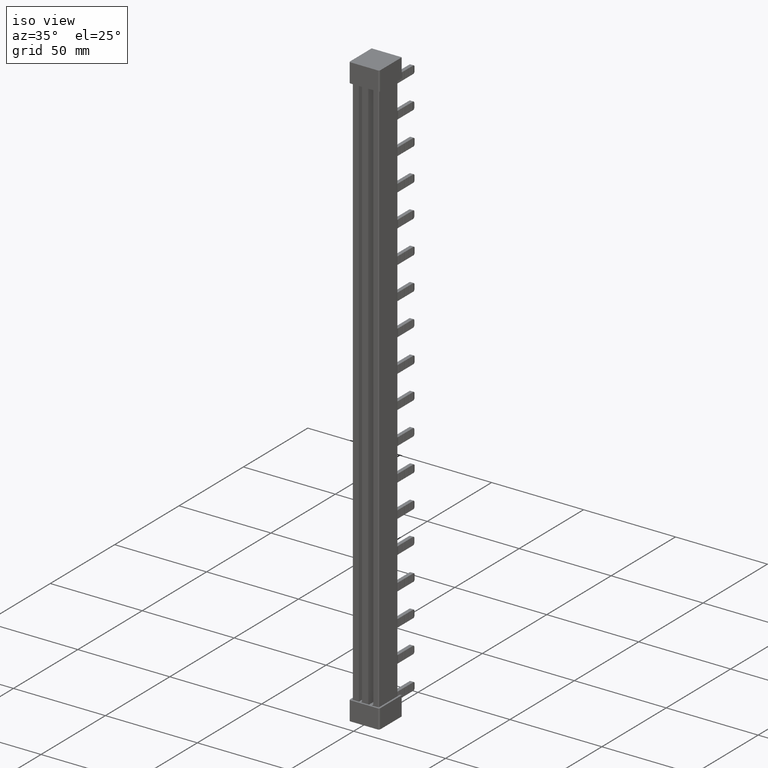
[diagram: clean part render]
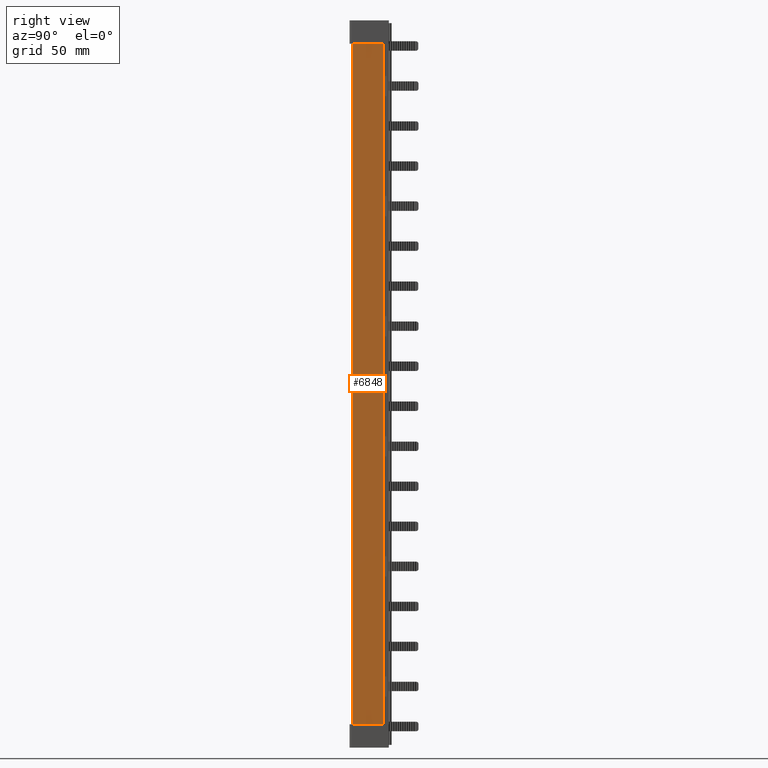
[diagram: tour spotlight — one face highlighted and labeled with its STEP entity id]
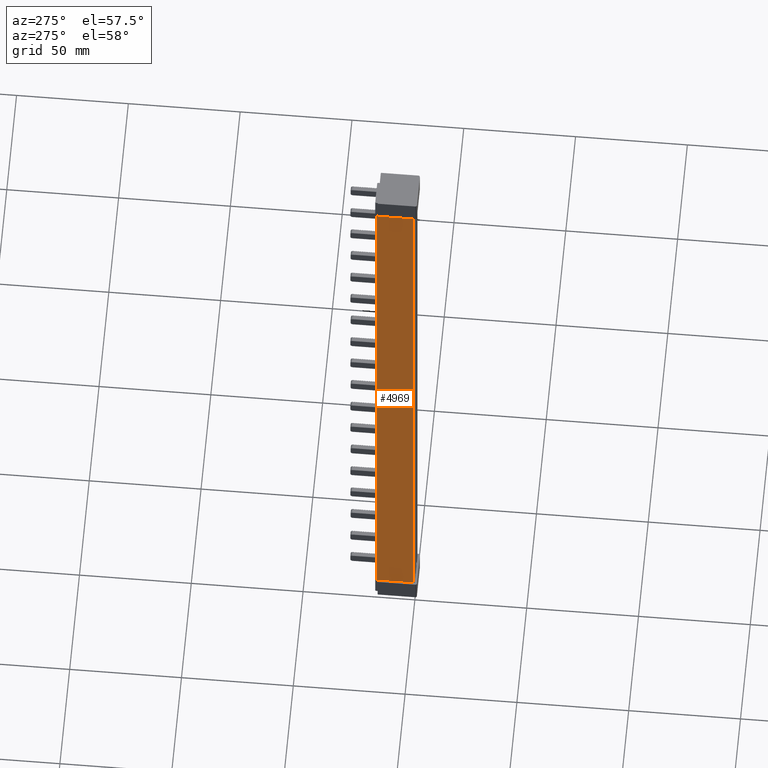
[diagram: tour spotlight — one face highlighted and labeled with its STEP entity id]
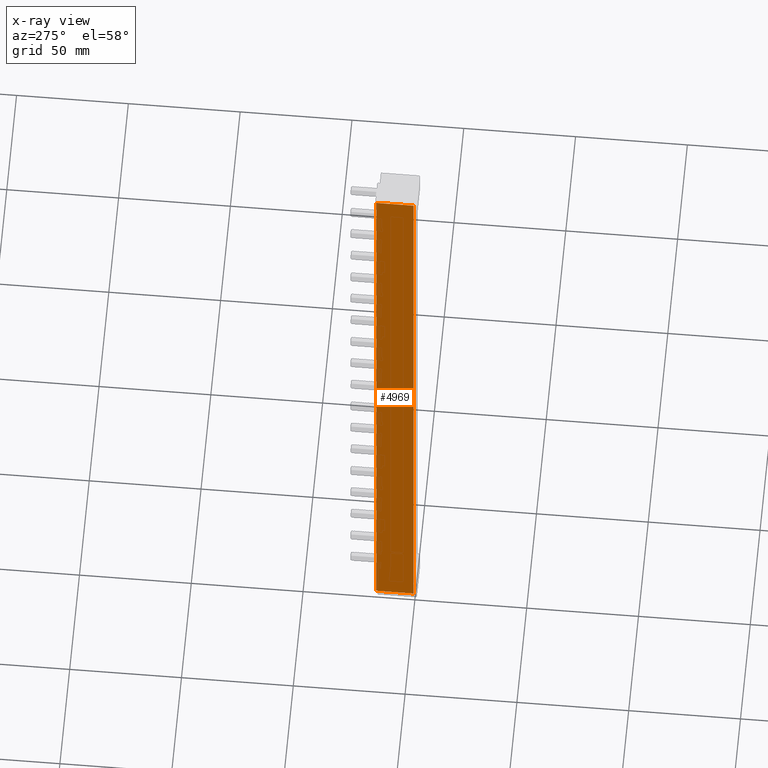
[diagram: x-ray of the same camera — body ghosted, this tour face saturated]
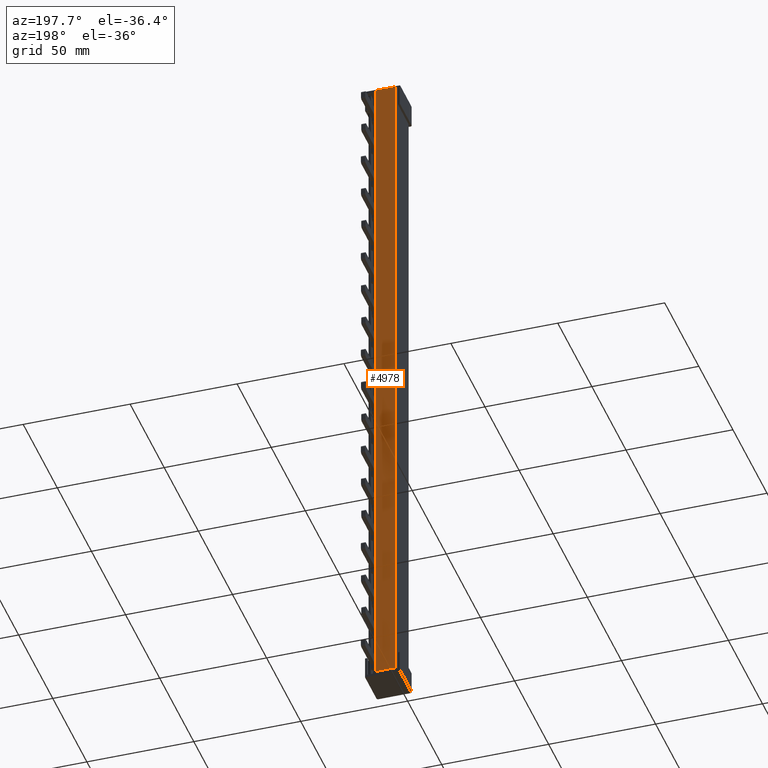
[diagram: tour spotlight — one face highlighted and labeled with its STEP entity id]
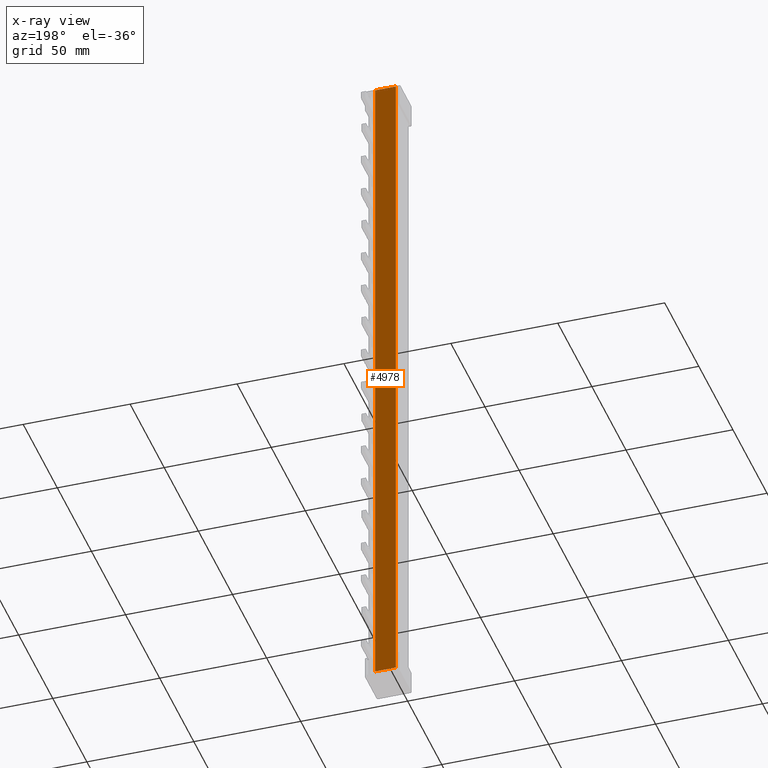
[diagram: x-ray of the same camera — body ghosted, this tour face saturated]
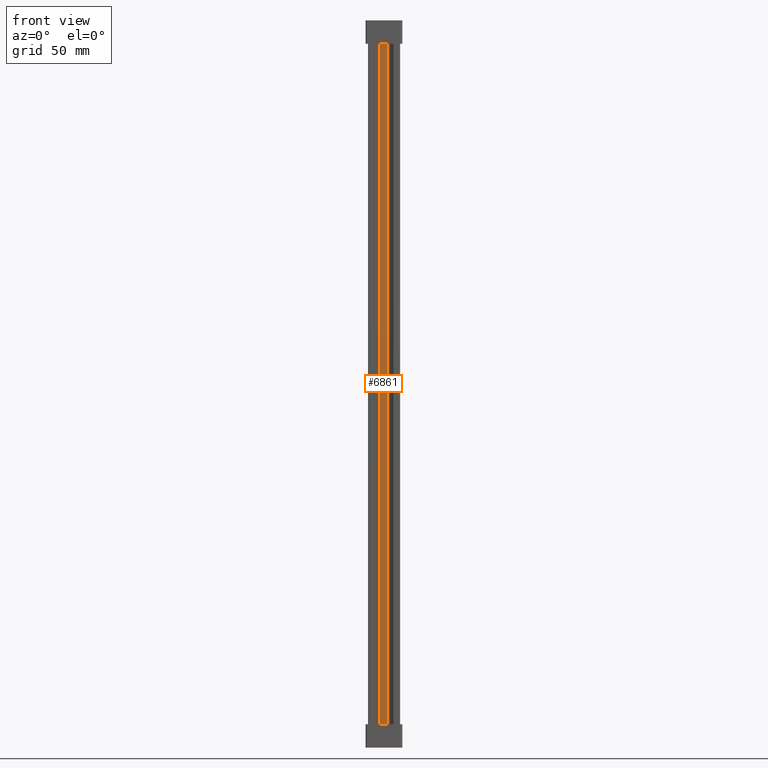
[diagram: tour spotlight — one face highlighted and labeled with its STEP entity id]
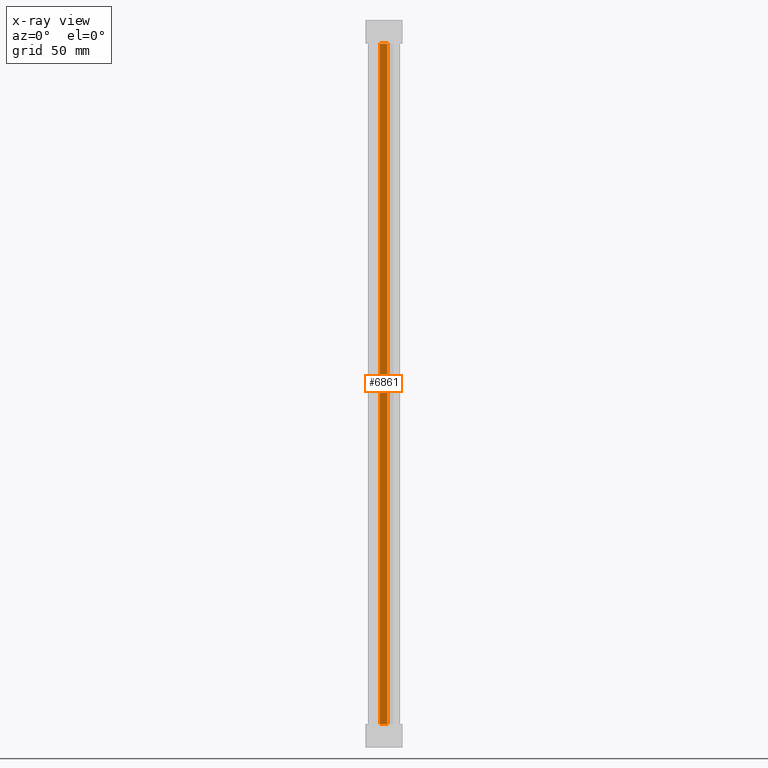
[diagram: x-ray of the same camera — body ghosted, this tour face saturated]
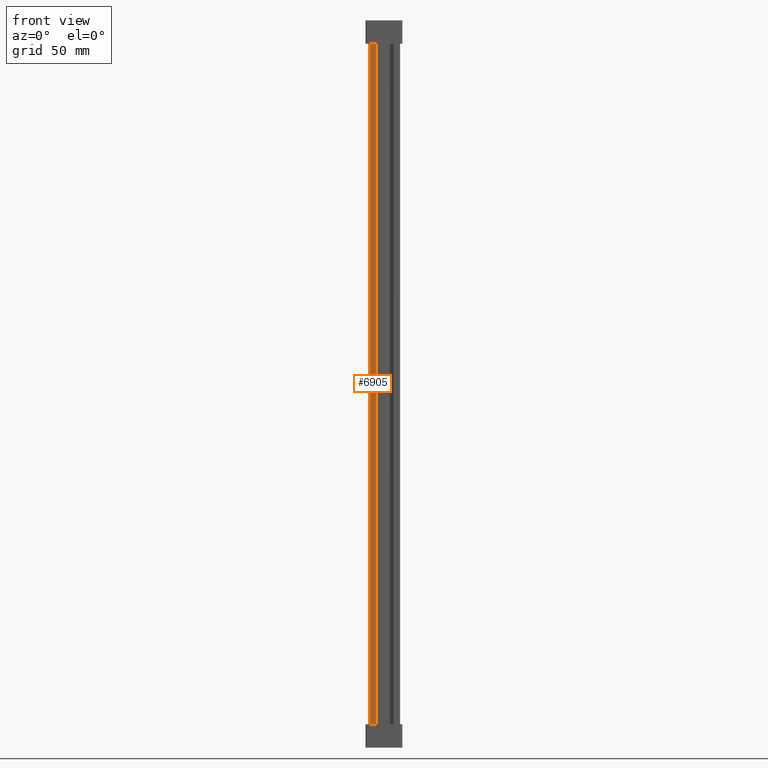
[diagram: tour spotlight — one face highlighted and labeled with its STEP entity id]
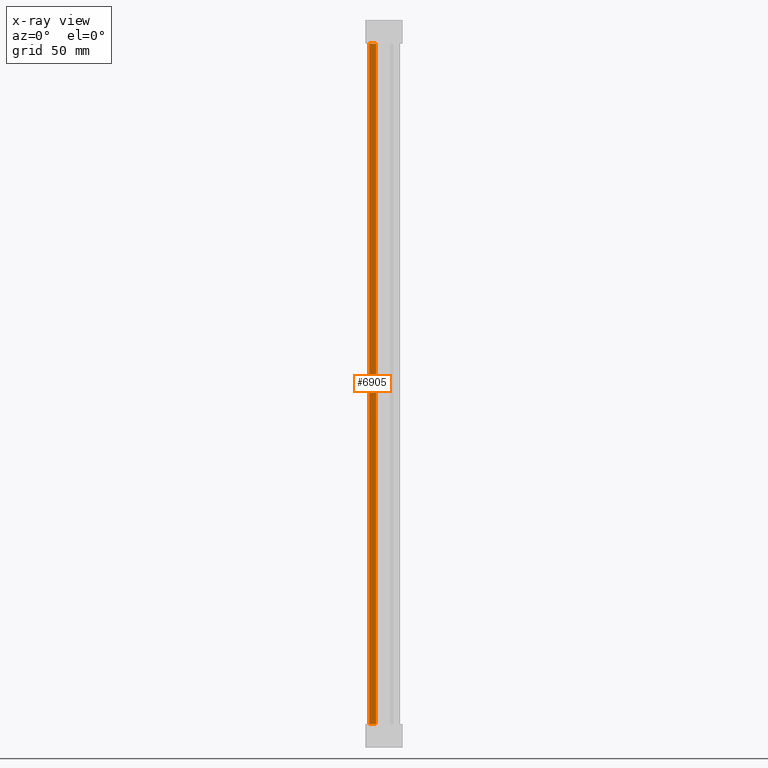
[diagram: x-ray of the same camera — body ghosted, this tour face saturated]
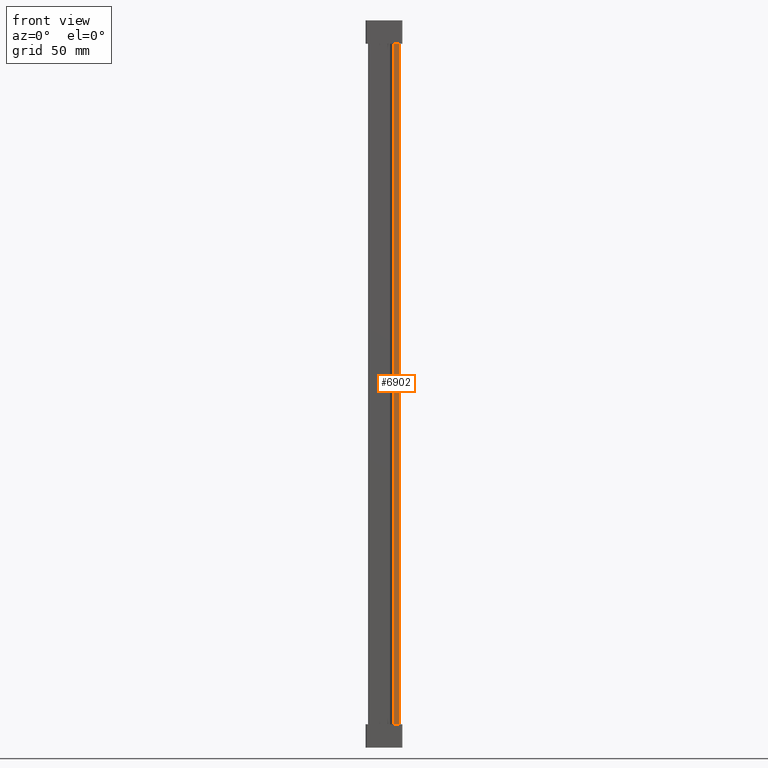
[diagram: tour spotlight — one face highlighted and labeled with its STEP entity id]
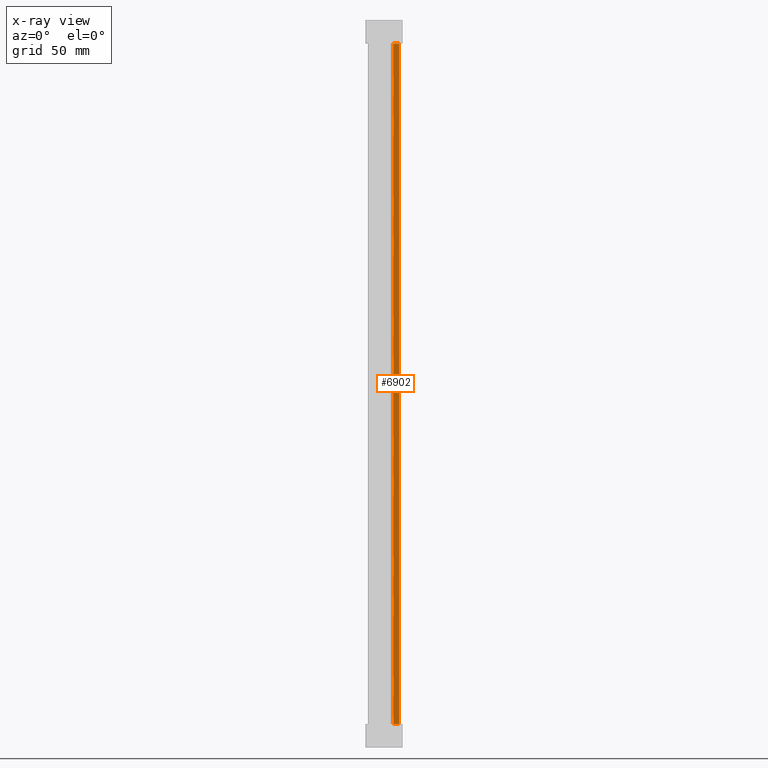
[diagram: x-ray of the same camera — body ghosted, this tour face saturated]
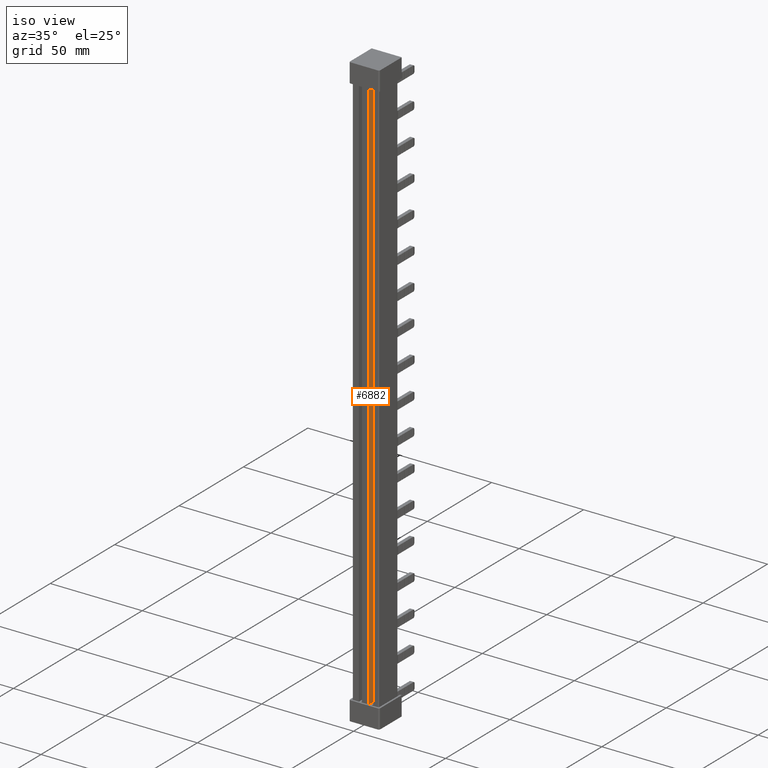
[diagram: tour spotlight — one face highlighted and labeled with its STEP entity id]
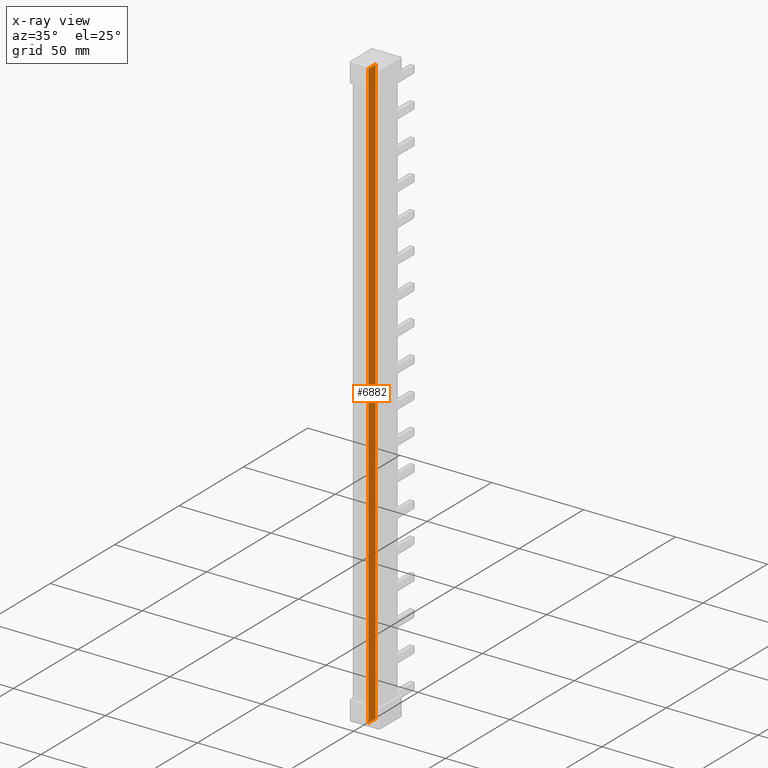
[diagram: x-ray of the same camera — body ghosted, this tour face saturated]
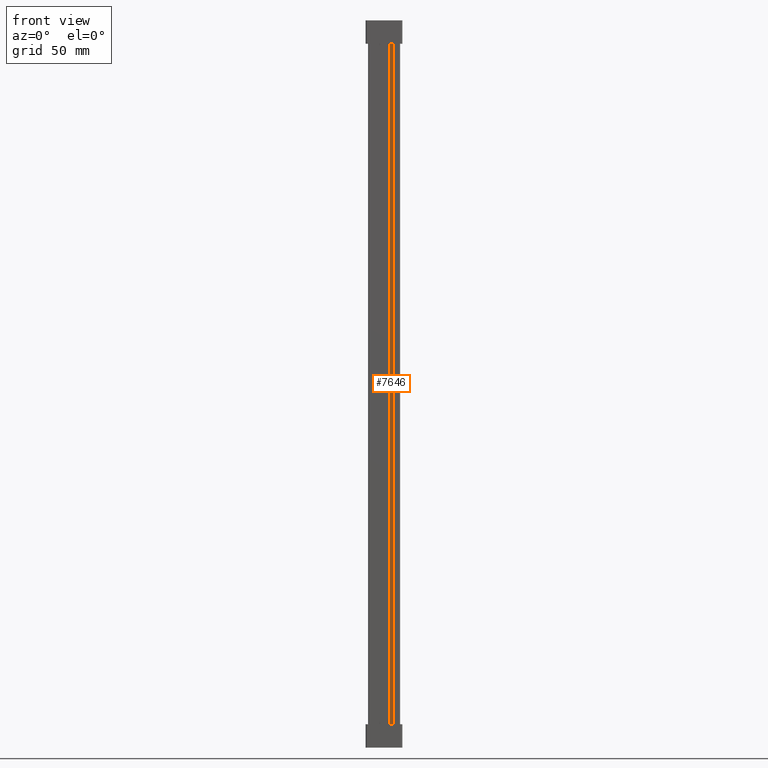
[diagram: tour spotlight — one face highlighted and labeled with its STEP entity id]
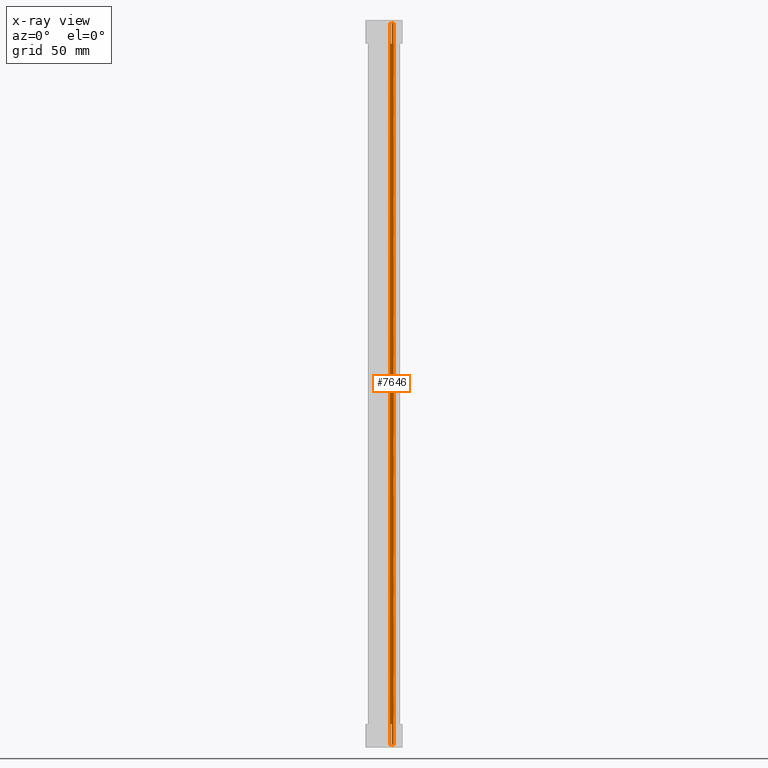
[diagram: x-ray of the same camera — body ghosted, this tour face saturated]
A machine part: a face-by-face anatomy tour. The part has 1010 B-rep faces; the first image is the clean iso view, then the 8 largest visible faces are spotlighted one at a time (largest first), each with its STEP entity span.

Face 1 — right view, entity #6848. In plain terms, the highlighted planar face has unit normal (1, -0, 0).
Definition (entity closure, byte-faithful):
#748 = EDGE_CURVE ( 'NONE', #11662, #11667, #13796, .T. ) ;
#897 = EDGE_CURVE ( 'NONE', #11726, #11685, #14303, .T. ) ;
#911 = EDGE_CURVE ( 'NONE', #11726, #11667, #14288, .T. ) ;
#931 = EDGE_CURVE ( 'NONE', #11662, #11685, #14368, .T. ) ;
#4153 = CARTESIAN_POINT ( 'NONE',  ( 13.67637477970029600, -8.991461328757369000, 219.0000000000000000 ) ) ;
#4155 = DIRECTION ( 'NONE',  ( 1.000000000000000000, -0.0000000000000000000, 0.0000000000000000000 ) ) ;
#4160 = FACE_OUTER_BOUND ( 'NONE', #21672, .T. ) ;
#4178 = PLANE ( 'NONE',  #32021 ) ;
#4242 = DIRECTION ( 'NONE',  ( 0.0000000000000000000, 0.0000000000000000000, -1.000000000000000000 ) ) ;
#6848 = ADVANCED_FACE ( 'NONE', ( #4160 ), #4178, .T. ) ;
#11662 = VERTEX_POINT ( 'NONE', #15833 ) ;
#11667 = VERTEX_POINT ( 'NONE', #15795 ) ;
#11685 = VERTEX_POINT ( 'NONE', #15877 ) ;
#11726 = VERTEX_POINT ( 'NONE', #15978 ) ;
#12015 = ORIENTED_EDGE ( 'NONE', *, *, #748, .T. ) ;
#12021 = ORIENTED_EDGE ( 'NONE', *, *, #931, .F. ) ;
#12028 = ORIENTED_EDGE ( 'NONE', *, *, #911, .F. ) ;
#12044 = ORIENTED_EDGE ( 'NONE', *, *, #897, .T. ) ;
#13796 = LINE ( 'NONE', #13838, #24815 ) ;
#13832 = DIRECTION ( 'NONE',  ( 0.0000000000000000000, 0.0000000000000000000, -1.000000000000000000 ) ) ;
#13838 = CARTESIAN_POINT ( 'NONE',  ( 13.67637477970029600, 0.4999999999992788000, 219.0000000000000000 ) ) ;
#14262 = CARTESIAN_POINT ( 'NONE',  ( 13.67637477970029600, -8.991461328757369000, -94.60000000005183600 ) ) ;
#14264 = DIRECTION ( 'NONE',  ( -0.0000000000000000000, -0.0000000000000000000, 1.000000000000000000 ) ) ;
#14270 = CARTESIAN_POINT ( 'NONE',  ( 13.67637477970029600, 14.29107189157535600, 219.0000000000000000 ) ) ;
#14288 = LINE ( 'NONE', #14262, #24981 ) ;
#14295 = DIRECTION ( 'NONE',  ( 0.0000000000000000000, -1.000000000000000000, 0.0000000000000000000 ) ) ;
#14303 = LINE ( 'NONE', #14270, #24977 ) ;
#14358 = CARTESIAN_POINT ( 'NONE',  ( 13.67637477970029600, -8.991461328757369000, 208.6000000000518100 ) ) ;
#14368 = LINE ( 'NONE', #14358, #24960 ) ;
#14372 = DIRECTION ( 'NONE',  ( 0.0000000000000000000, 1.000000000000000000, 0.0000000000000000000 ) ) ;
#15795 = CARTESIAN_POINT ( 'NONE',  ( 13.67637477970029600, 0.4999999999992788000, -94.60000000005183600 ) ) ;
#15833 = CARTESIAN_POINT ( 'NONE',  ( 13.67637477970029600, 0.4999999999992788000, 208.6000000000518100 ) ) ;
#15877 = CARTESIAN_POINT ( 'NONE',  ( 13.67637477970029600, 14.29107189157535600, 208.6000000000518100 ) ) ;
#15978 = CARTESIAN_POINT ( 'NONE',  ( 13.67637477970029600, 14.29107189157535600, -94.60000000005183600 ) ) ;
#21672 = EDGE_LOOP ( 'NONE', ( #12015, #12028, #12044, #12021 ) ) ;
#24815 = VECTOR ( 'NONE', #13832, 1000.000000000000000 ) ;
#24960 = VECTOR ( 'NONE', #14372, 1000.000000000000000 ) ;
#24977 = VECTOR ( 'NONE', #14264, 1000.000000000000000 ) ;
#24981 = VECTOR ( 'NONE', #14295, 1000.000000000000000 ) ;
#32021 = AXIS2_PLACEMENT_3D ( 'NONE', #4153, #4155, #4242 ) ;

Face 2 — auxiliary view, entity #4969. An x-ray twin of the same camera follows (body ghosted, this face saturated) — the face is partly hidden behind the body. In plain terms, the highlighted planar face has unit normal (-1, 0, 0).
Definition (entity closure, byte-faithful):
#992 = EDGE_CURVE ( 'NONE', #11843, #11801, #1587, .T. ) ;
#1004 = EDGE_CURVE ( 'NONE', #11829, #11843, #1576, .T. ) ;
#1036 = EDGE_CURVE ( 'NONE', #11847, #11850, #1663, .T. ) ;
#1061 = EDGE_CURVE ( 'NONE', #11831, #11829, #1730, .T. ) ;
#1074 = EDGE_CURVE ( 'NONE', #11801, #11847, #1795, .T. ) ;
#1103 = EDGE_CURVE ( 'NONE', #11850, #11831, #1902, .T. ) ;
#1564 = CARTESIAN_POINT ( 'NONE',  ( -0.6240000000000559500, -8.991461328757369000, 217.8000000000587600 ) ) ;
#1568 = DIRECTION ( 'NONE',  ( 0.0000000000000000000, 1.000000000000000000, -0.0000000000000000000 ) ) ;
#1576 = LINE ( 'NONE', #1564, #25089 ) ;
#1582 = CARTESIAN_POINT ( 'NONE',  ( -0.6240000000000411900, 1.249999999999640300, 217.7999999999999800 ) ) ;
#1583 = DIRECTION ( 'NONE',  ( 0.0000000000000000000, 1.000000000000000000, 0.0000000000000000000 ) ) ;
#1587 = LINE ( 'NONE', #1582, #25105 ) ;
#1663 = LINE ( 'NONE', #1669, #24242 ) ;
#1669 = CARTESIAN_POINT ( 'NONE',  ( -0.6240000000000689400, 11.69096289031699400, -103.7999999999999800 ) ) ;
#1699 = DIRECTION ( 'NONE',  ( 0.0000000000000000000, -1.000000000000000000, -3.636195823394557300E-017 ) ) ;
#1730 = LINE ( 'NONE', #1754, #24219 ) ;
#1754 = CARTESIAN_POINT ( 'NONE',  ( -0.6240000000000559500, 0.5000000000000004400, 220.2000000000000200 ) ) ;
#1789 = DIRECTION ( 'NONE',  ( 0.0000000000000000000, 0.0000000000000000000, 1.000000000000000000 ) ) ;
#1795 = LINE ( 'NONE', #1825, #24268 ) ;
#1825 = CARTESIAN_POINT ( 'NONE',  ( -0.6240000000000559500, 17.19999999999998500, 220.2000000000000200 ) ) ;
#1826 = DIRECTION ( 'NONE',  ( -0.0000000000000000000, -0.0000000000000000000, -1.000000000000000000 ) ) ;
#1895 = CARTESIAN_POINT ( 'NONE',  ( -0.6240000000000559500, -8.991461328757369000, -103.8000000000294800 ) ) ;
#1902 = LINE ( 'NONE', #1895, #24307 ) ;
#1931 = DIRECTION ( 'NONE',  ( -0.0000000000000000000, -1.000000000000000000, 0.0000000000000000000 ) ) ;
#2989 = AXIS2_PLACEMENT_3D ( 'NONE', #32755, #32767, #32788 ) ;
#4969 = ADVANCED_FACE ( 'NONE', ( #32764 ), #32749, .T. ) ;
#10586 = ORIENTED_EDGE ( 'NONE', *, *, #1103, .T. ) ;
#10623 = ORIENTED_EDGE ( 'NONE', *, *, #1074, .T. ) ;
#10633 = ORIENTED_EDGE ( 'NONE', *, *, #1004, .T. ) ;
#10638 = ORIENTED_EDGE ( 'NONE', *, *, #1036, .T. ) ;
#10640 = ORIENTED_EDGE ( 'NONE', *, *, #992, .T. ) ;
#10648 = ORIENTED_EDGE ( 'NONE', *, *, #1061, .T. ) ;
#11801 = VERTEX_POINT ( 'NONE', #16068 ) ;
#11829 = VERTEX_POINT ( 'NONE', #16173 ) ;
#11831 = VERTEX_POINT ( 'NONE', #16238 ) ;
#11843 = VERTEX_POINT ( 'NONE', #16218 ) ;
#11847 = VERTEX_POINT ( 'NONE', #16220 ) ;
#11850 = VERTEX_POINT ( 'NONE', #16168 ) ;
#16068 = CARTESIAN_POINT ( 'NONE',  ( -0.6240000000000485200, 17.19999999999998500, 217.7999999999999800 ) ) ;
#16168 = CARTESIAN_POINT ( 'NONE',  ( -0.6240000000000639500, 16.49999999999971600, -103.8000000000221200 ) ) ;
#16173 = CARTESIAN_POINT ( 'NONE',  ( -0.6240000000000559500, 0.5000000000000004400, 217.8000000000587000 ) ) ;
#16218 = CARTESIAN_POINT ( 'NONE',  ( -0.6240000000000448500, 16.49999999999970900, 217.8000000000220400 ) ) ;
#16220 = CARTESIAN_POINT ( 'NONE',  ( -0.6240000000000623900, 17.19999999999998500, -103.8000000000000000 ) ) ;
#16238 = CARTESIAN_POINT ( 'NONE',  ( -0.6240000000000559500, 0.5000000000000004400, -103.8000000000441900 ) ) ;
#24219 = VECTOR ( 'NONE', #1789, 1000.000000000000000 ) ;
#24242 = VECTOR ( 'NONE', #1699, 1000.000000000000000 ) ;
#24268 = VECTOR ( 'NONE', #1826, 1000.000000000000000 ) ;
#24307 = VECTOR ( 'NONE', #1931, 1000.000000000000000 ) ;
#25089 = VECTOR ( 'NONE', #1568, 1000.000000000000000 ) ;
#25105 = VECTOR ( 'NONE', #1583, 1000.000000000000000 ) ;
#28514 = EDGE_LOOP ( 'NONE', ( #10623, #10638, #10586, #10648, #10633, #10640 ) ) ;
#32749 = PLANE ( 'NONE',  #2989 ) ;
#32755 = CARTESIAN_POINT ( 'NONE',  ( -0.6240000000000559500, -8.991461328757369000, 220.2000000000000200 ) ) ;
#32764 = FACE_OUTER_BOUND ( 'NONE', #28514, .T. ) ;
#32767 = DIRECTION ( 'NONE',  ( -1.000000000000000000, 0.0000000000000000000, 0.0000000000000000000 ) ) ;
#32788 = DIRECTION ( 'NONE',  ( 0.0000000000000000000, 0.0000000000000000000, 1.000000000000000000 ) ) ;

Face 3 — auxiliary view, entity #4978. An x-ray twin of the same camera follows (body ghosted, this face saturated) — the face is partly hidden behind the body. In plain terms, the highlighted planar face has unit normal (0, 1, 0).
Definition (entity closure, byte-faithful):
#1062 = EDGE_CURVE ( 'NONE', #11848, #11822, #1766, .T. ) ;
#1072 = EDGE_CURVE ( 'NONE', #11793, #11814, #1772, .T. ) ;
#1100 = EDGE_CURVE ( 'NONE', #11793, #11822, #1862, .T. ) ;
#1167 = EDGE_CURVE ( 'NONE', #11814, #11848, #2110, .T. ) ;
#1766 = LINE ( 'NONE', #1791, #24226 ) ;
#1772 = LINE ( 'NONE', #1780, #24278 ) ;
#1780 = CARTESIAN_POINT ( 'NONE',  ( 5.825548534933072500, 17.69999999999998500, 217.7999999999999800 ) ) ;
#1785 = DIRECTION ( 'NONE',  ( -1.000000000000000000, -0.0000000000000000000, 0.0000000000000000000 ) ) ;
#1791 = CARTESIAN_POINT ( 'NONE',  ( 5.825548534933072500, 17.69999999999998500, -103.8000000000000000 ) ) ;
#1819 = DIRECTION ( 'NONE',  ( 1.000000000000000000, 0.0000000000000000000, -0.0000000000000000000 ) ) ;
#1862 = LINE ( 'NONE', #1863, #24294 ) ;
#1863 = CARTESIAN_POINT ( 'NONE',  ( -0.1239999999999999300, 17.70000000000001400, 220.2000000000000200 ) ) ;
#1868 = DIRECTION ( 'NONE',  ( -0.0000000000000000000, -0.0000000000000000000, -1.000000000000000000 ) ) ;
#2108 = CARTESIAN_POINT ( 'NONE',  ( 9.543233284733545900, 17.69999999999998500, 220.2000000000000200 ) ) ;
#2110 = LINE ( 'NONE', #2108, #24381 ) ;
#2111 = DIRECTION ( 'NONE',  ( -0.0000000000000000000, 0.0000000000000000000, -1.000000000000000000 ) ) ;
#3028 = AXIS2_PLACEMENT_3D ( 'NONE', #32830, #32836, #32837 ) ;
#4978 = ADVANCED_FACE ( 'NONE', ( #32835 ), #32800, .T. ) ;
#10591 = ORIENTED_EDGE ( 'NONE', *, *, #1100, .F. ) ;
#10593 = ORIENTED_EDGE ( 'NONE', *, *, #1072, .T. ) ;
#10609 = ORIENTED_EDGE ( 'NONE', *, *, #1062, .T. ) ;
#10660 = ORIENTED_EDGE ( 'NONE', *, *, #1167, .T. ) ;
#11793 = VERTEX_POINT ( 'NONE', #16097 ) ;
#11814 = VERTEX_POINT ( 'NONE', #16087 ) ;
#11822 = VERTEX_POINT ( 'NONE', #16224 ) ;
#11848 = VERTEX_POINT ( 'NONE', #16203 ) ;
#16087 = CARTESIAN_POINT ( 'NONE',  ( 9.543233284733545900, 17.69999999999998500, 217.7999999999999800 ) ) ;
#16097 = CARTESIAN_POINT ( 'NONE',  ( -0.1239999999999999700, 17.69999999999999900, 217.7999999999999800 ) ) ;
#16203 = CARTESIAN_POINT ( 'NONE',  ( 9.543233284733545900, 17.69999999999998500, -103.8000000000000000 ) ) ;
#16224 = CARTESIAN_POINT ( 'NONE',  ( -0.1239999999999999700, 17.69999999999999900, -103.8000000000000000 ) ) ;
#21631 = EDGE_LOOP ( 'NONE', ( #10660, #10609, #10591, #10593 ) ) ;
#24226 = VECTOR ( 'NONE', #1785, 1000.000000000000000 ) ;
#24278 = VECTOR ( 'NONE', #1819, 1000.000000000000000 ) ;
#24294 = VECTOR ( 'NONE', #1868, 1000.000000000000000 ) ;
#24381 = VECTOR ( 'NONE', #2111, 1000.000000000000000 ) ;
#32800 = PLANE ( 'NONE',  #3028 ) ;
#32830 = CARTESIAN_POINT ( 'NONE',  ( 5.825548534933072500, 17.69999999999998500, 220.2000000000000200 ) ) ;
#32835 = FACE_OUTER_BOUND ( 'NONE', #21631, .T. ) ;
#32836 = DIRECTION ( 'NONE',  ( 0.0000000000000000000, 1.000000000000000000, 0.0000000000000000000 ) ) ;
#32837 = DIRECTION ( 'NONE',  ( 0.0000000000000000000, -0.0000000000000000000, 1.000000000000000000 ) ) ;

Face 4 — front view, entity #6861. An x-ray twin of the same camera follows (body ghosted, this face saturated) — the face is partly hidden behind the body. In plain terms, the highlighted planar face has unit normal (0, 1, 0).
Definition (entity closure, byte-faithful):
#866 = EDGE_CURVE ( 'NONE', #11690, #11711, #14178, .T. ) ;
#910 = EDGE_CURVE ( 'NONE', #11711, #11718, #14279, .T. ) ;
#914 = EDGE_CURVE ( 'NONE', #11719, #11690, #14309, .T. ) ;
#982 = EDGE_CURVE ( 'NONE', #11718, #11719, #1538, .T. ) ;
#1522 = DIRECTION ( 'NONE',  ( 1.000000000000000000, 0.0000000000000000000, -4.965472477636011600E-013 ) ) ;
#1538 = LINE ( 'NONE', #1539, #25086 ) ;
#1539 = CARTESIAN_POINT ( 'NONE',  ( 6.466000000103465900, -2.775557561562891400E-013, 208.6000000000553900 ) ) ;
#4277 = PLANE ( 'NONE',  #32028 ) ;
#4292 = FACE_OUTER_BOUND ( 'NONE', #21643, .T. ) ;
#4298 = DIRECTION ( 'NONE',  ( 0.0000000000000000000, 1.000000000000000000, 0.0000000000000000000 ) ) ;
#4308 = CARTESIAN_POINT ( 'NONE',  ( 6.525548534933072600, -2.775557561562891400E-013, 219.0000000000000000 ) ) ;
#4310 = DIRECTION ( 'NONE',  ( 0.0000000000000000000, -0.0000000000000000000, 1.000000000000000000 ) ) ;
#6861 = ADVANCED_FACE ( 'NONE', ( #4292 ), #4277, .F. ) ;
#11690 = VERTEX_POINT ( 'NONE', #15914 ) ;
#11711 = VERTEX_POINT ( 'NONE', #15974 ) ;
#11718 = VERTEX_POINT ( 'NONE', #15910 ) ;
#11719 = VERTEX_POINT ( 'NONE', #15982 ) ;
#12009 = ORIENTED_EDGE ( 'NONE', *, *, #914, .F. ) ;
#12016 = ORIENTED_EDGE ( 'NONE', *, *, #910, .F. ) ;
#12029 = ORIENTED_EDGE ( 'NONE', *, *, #982, .F. ) ;
#12034 = ORIENTED_EDGE ( 'NONE', *, *, #866, .F. ) ;
#14176 = CARTESIAN_POINT ( 'NONE',  ( 6.466000000103465900, -2.775557561562891400E-013, -94.60000000005538800 ) ) ;
#14178 = LINE ( 'NONE', #14176, #24920 ) ;
#14198 = DIRECTION ( 'NONE',  ( -1.000000000000000000, 0.0000000000000000000, -4.965472477636011600E-013 ) ) ;
#14261 = CARTESIAN_POINT ( 'NONE',  ( 4.549999999999909200, -2.775557561562891400E-013, 219.0000000000000000 ) ) ;
#14279 = LINE ( 'NONE', #14261, #25019 ) ;
#14287 = DIRECTION ( 'NONE',  ( 0.0000000000000000000, -0.0000000000000000000, 1.000000000000000000 ) ) ;
#14309 = LINE ( 'NONE', #14312, #25011 ) ;
#14312 = CARTESIAN_POINT ( 'NONE',  ( 7.950000000000123600, -2.775557561562891400E-013, 219.0000000000000000 ) ) ;
#14324 = DIRECTION ( 'NONE',  ( -0.0000000000000000000, 0.0000000000000000000, -1.000000000000000000 ) ) ;
#15910 = CARTESIAN_POINT ( 'NONE',  ( 4.549999999999910100, -2.775557561562891400E-013, 208.6000000000563300 ) ) ;
#15914 = CARTESIAN_POINT ( 'NONE',  ( 7.950000000000123600, -2.775557561562891400E-013, -94.60000000005464900 ) ) ;
#15974 = CARTESIAN_POINT ( 'NONE',  ( 4.549999999999910100, -2.775557561562891400E-013, -94.60000000005634000 ) ) ;
#15982 = CARTESIAN_POINT ( 'NONE',  ( 7.950000000000123600, -2.775557561562891400E-013, 208.6000000000546200 ) ) ;
#21643 = EDGE_LOOP ( 'NONE', ( #12029, #12016, #12034, #12009 ) ) ;
#24920 = VECTOR ( 'NONE', #14198, 1000.000000000000000 ) ;
#25011 = VECTOR ( 'NONE', #14324, 1000.000000000000000 ) ;
#25019 = VECTOR ( 'NONE', #14287, 1000.000000000000000 ) ;
#25086 = VECTOR ( 'NONE', #1522, 1000.000000000000000 ) ;
#32028 = AXIS2_PLACEMENT_3D ( 'NONE', #4308, #4298, #4310 ) ;

Face 5 — front view, entity #6905. An x-ray twin of the same camera follows (body ghosted, this face saturated) — the face is partly hidden behind the body. In plain terms, the highlighted planar face has unit normal (0, 1, 0).
Definition (entity closure, byte-faithful):
#961 = EDGE_CURVE ( 'NONE', #11757, #11790, #14448, .T. ) ;
#984 = EDGE_CURVE ( 'NONE', #11775, #11744, #1508, .T. ) ;
#1031 = EDGE_CURVE ( 'NONE', #11790, #11775, #1661, .T. ) ;
#1051 = EDGE_CURVE ( 'NONE', #11744, #11757, #1737, .T. ) ;
#1508 = LINE ( 'NONE', #1519, #25102 ) ;
#1519 = CARTESIAN_POINT ( 'NONE',  ( 6.466000000103465900, 0.0000000000000000000, -94.60000000005538800 ) ) ;
#1532 = DIRECTION ( 'NONE',  ( -1.000000000000000000, 0.0000000000000000000, -4.965472477636011600E-013 ) ) ;
#1647 = CARTESIAN_POINT ( 'NONE',  ( 2.900000000000013700, 0.0000000000000000000, 219.0000000000000000 ) ) ;
#1655 = DIRECTION ( 'NONE',  ( -0.0000000000000000000, 0.0000000000000000000, -1.000000000000000000 ) ) ;
#1661 = LINE ( 'NONE', #1647, #24204 ) ;
#1708 = CARTESIAN_POINT ( 'NONE',  ( -0.1239999999999999300, -2.775557561562891400E-014, 219.0000000000000000 ) ) ;
#1712 = DIRECTION ( 'NONE',  ( 0.0000000000000000000, 0.0000000000000000000, 1.000000000000000000 ) ) ;
#1737 = LINE ( 'NONE', #1708, #24217 ) ;
#4471 = CARTESIAN_POINT ( 'NONE',  ( 6.525548534933072600, 0.0000000000000000000, 219.0000000000000000 ) ) ;
#4474 = FACE_OUTER_BOUND ( 'NONE', #21557, .T. ) ;
#4476 = DIRECTION ( 'NONE',  ( 0.0000000000000000000, -0.0000000000000000000, 1.000000000000000000 ) ) ;
#4489 = PLANE ( 'NONE',  #32100 ) ;
#4490 = DIRECTION ( 'NONE',  ( 0.0000000000000000000, 1.000000000000000000, 0.0000000000000000000 ) ) ;
#6905 = ADVANCED_FACE ( 'NONE', ( #4474 ), #4489, .F. ) ;
#11744 = VERTEX_POINT ( 'NONE', #15992 ) ;
#11757 = VERTEX_POINT ( 'NONE', #16105 ) ;
#11775 = VERTEX_POINT ( 'NONE', #16028 ) ;
#11790 = VERTEX_POINT ( 'NONE', #16111 ) ;
#12128 = ORIENTED_EDGE ( 'NONE', *, *, #961, .F. ) ;
#12130 = ORIENTED_EDGE ( 'NONE', *, *, #1051, .F. ) ;
#12153 = ORIENTED_EDGE ( 'NONE', *, *, #1031, .F. ) ;
#12166 = ORIENTED_EDGE ( 'NONE', *, *, #984, .F. ) ;
#14414 = DIRECTION ( 'NONE',  ( 1.000000000000000000, 0.0000000000000000000, -4.965472477636011600E-013 ) ) ;
#14448 = LINE ( 'NONE', #14449, #25054 ) ;
#14449 = CARTESIAN_POINT ( 'NONE',  ( 6.466000000103465900, 0.0000000000000000000, 208.6000000000553900 ) ) ;
#15992 = CARTESIAN_POINT ( 'NONE',  ( -0.1239999999999999600, -1.249000902703301100E-013, -94.60000000005865700 ) ) ;
#16028 = CARTESIAN_POINT ( 'NONE',  ( 2.900000000000013700, 0.0000000000000000000, -94.60000000005716500 ) ) ;
#16105 = CARTESIAN_POINT ( 'NONE',  ( -0.1239999999999999600, -1.249000902703301100E-013, 208.6000000000586600 ) ) ;
#16111 = CARTESIAN_POINT ( 'NONE',  ( 2.900000000000013700, 0.0000000000000000000, 208.6000000000571500 ) ) ;
#21557 = EDGE_LOOP ( 'NONE', ( #12128, #12130, #12166, #12153 ) ) ;
#24204 = VECTOR ( 'NONE', #1655, 1000.000000000000000 ) ;
#24217 = VECTOR ( 'NONE', #1712, 1000.000000000000000 ) ;
#25054 = VECTOR ( 'NONE', #14414, 1000.000000000000000 ) ;
#25102 = VECTOR ( 'NONE', #1532, 1000.000000000000000 ) ;
#32100 = AXIS2_PLACEMENT_3D ( 'NONE', #4471, #4490, #4476 ) ;

Face 6 — front view, entity #6902. An x-ray twin of the same camera follows (body ghosted, this face saturated) — the face is partly hidden behind the body. In plain terms, the highlighted planar face has unit normal (0, 1, 0).
Definition (entity closure, byte-faithful):
#800 = EDGE_CURVE ( 'NONE', #11613, #11661, #13967, .T. ) ;
#944 = EDGE_CURVE ( 'NONE', #22670, #11613, #14393, .T. ) ;
#972 = EDGE_CURVE ( 'NONE', #11661, #22733, #2322, .T. ) ;
#2318 = DIRECTION ( 'NONE',  ( -1.000000000000000000, 0.0000000000000000000, -4.965472477636011600E-013 ) ) ;
#2322 = LINE ( 'NONE', #2324, #25068 ) ;
#2324 = CARTESIAN_POINT ( 'NONE',  ( 6.466000000103465900, -4.996003610813204400E-013, -94.60000000005538800 ) ) ;
#4475 = PLANE ( 'NONE',  #32098 ) ;
#4477 = FACE_OUTER_BOUND ( 'NONE', #21635, .T. ) ;
#4486 = DIRECTION ( 'NONE',  ( 0.0000000000000000000, 1.000000000000000000, 0.0000000000000000000 ) ) ;
#4491 = DIRECTION ( 'NONE',  ( 0.0000000000000000000, -0.0000000000000000000, 1.000000000000000000 ) ) ;
#4513 = CARTESIAN_POINT ( 'NONE',  ( 6.525548534933072600, -4.996003610813204400E-013, 219.0000000000000000 ) ) ;
#6902 = ADVANCED_FACE ( 'NONE', ( #4477 ), #4475, .F. ) ;
#7095 = EDGE_CURVE ( 'NONE', #22733, #22670, #17491, .T. ) ;
#9497 = CARTESIAN_POINT ( 'NONE',  ( 10.67385165201981100, -3.885780586188047900E-013, 208.6000000000532900 ) ) ;
#9554 = CARTESIAN_POINT ( 'NONE',  ( 10.67385165201981100, -3.885780586188047900E-013, -94.60000000005328500 ) ) ;
#11613 = VERTEX_POINT ( 'NONE', #15667 ) ;
#11661 = VERTEX_POINT ( 'NONE', #15848 ) ;
#12049 = ORIENTED_EDGE ( 'NONE', *, *, #944, .F. ) ;
#12052 = ORIENTED_EDGE ( 'NONE', *, *, #972, .F. ) ;
#12062 = ORIENTED_EDGE ( 'NONE', *, *, #800, .F. ) ;
#12063 = ORIENTED_EDGE ( 'NONE', *, *, #7095, .F. ) ;
#13931 = CARTESIAN_POINT ( 'NONE',  ( 13.17637477970035000, -4.996003610813204400E-013, 219.0000000000000000 ) ) ;
#13934 = DIRECTION ( 'NONE',  ( -0.0000000000000000000, 0.0000000000000000000, -1.000000000000000000 ) ) ;
#13967 = LINE ( 'NONE', #13931, #24878 ) ;
#14374 = DIRECTION ( 'NONE',  ( 1.000000000000000000, 0.0000000000000000000, -4.965472477636011600E-013 ) ) ;
#14390 = CARTESIAN_POINT ( 'NONE',  ( 6.466000000103465900, -4.996003610813204400E-013, 208.6000000000553900 ) ) ;
#14393 = LINE ( 'NONE', #14390, #25057 ) ;
#15667 = CARTESIAN_POINT ( 'NONE',  ( 13.17637477970035000, -4.996003610813204400E-013, 208.6000000000520600 ) ) ;
#15848 = CARTESIAN_POINT ( 'NONE',  ( 13.17637477970035000, -4.996003610813204400E-013, -94.60000000005206300 ) ) ;
#17407 = DIRECTION ( 'NONE',  ( 0.0000000000000000000, -0.0000000000000000000, 1.000000000000000000 ) ) ;
#17448 = CARTESIAN_POINT ( 'NONE',  ( 10.67385165201982700, -4.996003610813204400E-013, 219.0000000000000000 ) ) ;
#17491 = LINE ( 'NONE', #17448, #32229 ) ;
#21635 = EDGE_LOOP ( 'NONE', ( #12049, #12063, #12052, #12062 ) ) ;
#22670 = VERTEX_POINT ( 'NONE', #9497 ) ;
#22733 = VERTEX_POINT ( 'NONE', #9554 ) ;
#24878 = VECTOR ( 'NONE', #13934, 1000.000000000000000 ) ;
#25057 = VECTOR ( 'NONE', #14374, 1000.000000000000000 ) ;
#25068 = VECTOR ( 'NONE', #2318, 1000.000000000000000 ) ;
#32098 = AXIS2_PLACEMENT_3D ( 'NONE', #4513, #4486, #4491 ) ;
#32229 = VECTOR ( 'NONE', #17407, 1000.000000000000000 ) ;

Face 7 — iso view, entity #6882. An x-ray twin of the same camera follows (body ghosted, this face saturated) — the face is partly hidden behind the body. In plain terms, the highlighted planar face has unit normal (-1, 0, 0).
Definition (entity closure, byte-faithful):
#914 = EDGE_CURVE ( 'NONE', #11719, #11690, #14309, .T. ) ;
#921 = EDGE_CURVE ( 'NONE', #11719, #11781, #14320, .T. ) ;
#1006 = EDGE_CURVE ( 'NONE', #11821, #11781, #1607, .T. ) ;
#1084 = EDGE_CURVE ( 'NONE', #11849, #11821, #1816, .T. ) ;
#1087 = EDGE_CURVE ( 'NONE', #11849, #11834, #1828, .T. ) ;
#1102 = EDGE_CURVE ( 'NONE', #11834, #11690, #1871, .T. ) ;
#1598 = CARTESIAN_POINT ( 'NONE',  ( 7.950000000000123600, 16.29999999999973100, 217.8000000000546100 ) ) ;
#1607 = LINE ( 'NONE', #1598, #25133 ) ;
#1640 = DIRECTION ( 'NONE',  ( -0.0000000000000000000, -1.000000000000000000, -0.0000000000000000000 ) ) ;
#1798 = CARTESIAN_POINT ( 'NONE',  ( 7.950000000000123600, -8.991461328757369000, -103.8000000000546200 ) ) ;
#1805 = DIRECTION ( 'NONE',  ( 0.0000000000000000000, -0.0000000000000000000, 1.000000000000000000 ) ) ;
#1816 = LINE ( 'NONE', #1835, #24308 ) ;
#1828 = LINE ( 'NONE', #1798, #24271 ) ;
#1835 = CARTESIAN_POINT ( 'NONE',  ( 7.950000000000123600, 5.673275106952147000, 220.2000000000000200 ) ) ;
#1836 = DIRECTION ( 'NONE',  ( -0.0000000000000000000, -1.000000000000000000, 0.0000000000000000000 ) ) ;
#1871 = LINE ( 'NONE', #1874, #24270 ) ;
#1874 = CARTESIAN_POINT ( 'NONE',  ( 7.950000000000123600, -2.775557561562891400E-013, 220.2000000000000200 ) ) ;
#1916 = DIRECTION ( 'NONE',  ( 0.0000000000000000000, 0.0000000000000000000, 1.000000000000000000 ) ) ;
#4364 = DIRECTION ( 'NONE',  ( -1.000000000000000000, 0.0000000000000000000, 0.0000000000000000000 ) ) ;
#4378 = PLANE ( 'NONE',  #32057 ) ;
#4397 = FACE_OUTER_BOUND ( 'NONE', #28519, .T. ) ;
#4405 = CARTESIAN_POINT ( 'NONE',  ( 7.950000000000123600, -8.991461328757369000, 220.2000000000000200 ) ) ;
#4407 = DIRECTION ( 'NONE',  ( 0.0000000000000000000, 0.0000000000000000000, 1.000000000000000000 ) ) ;
#6882 = ADVANCED_FACE ( 'NONE', ( #4397 ), #4378, .F. ) ;
#10795 = ORIENTED_EDGE ( 'NONE', *, *, #921, .F. ) ;
#10891 = ORIENTED_EDGE ( 'NONE', *, *, #914, .T. ) ;
#10911 = ORIENTED_EDGE ( 'NONE', *, *, #1084, .T. ) ;
#10932 = ORIENTED_EDGE ( 'NONE', *, *, #1102, .F. ) ;
#10985 = ORIENTED_EDGE ( 'NONE', *, *, #1006, .T. ) ;
#10992 = ORIENTED_EDGE ( 'NONE', *, *, #1087, .F. ) ;
#11690 = VERTEX_POINT ( 'NONE', #15914 ) ;
#11719 = VERTEX_POINT ( 'NONE', #15982 ) ;
#11781 = VERTEX_POINT ( 'NONE', #16099 ) ;
#11821 = VERTEX_POINT ( 'NONE', #16166 ) ;
#11834 = VERTEX_POINT ( 'NONE', #16171 ) ;
#11849 = VERTEX_POINT ( 'NONE', #16242 ) ;
#14309 = LINE ( 'NONE', #14312, #25011 ) ;
#14312 = CARTESIAN_POINT ( 'NONE',  ( 7.950000000000123600, -2.775557561562891400E-013, 219.0000000000000000 ) ) ;
#14320 = LINE ( 'NONE', #14339, #25016 ) ;
#14324 = DIRECTION ( 'NONE',  ( -0.0000000000000000000, 0.0000000000000000000, -1.000000000000000000 ) ) ;
#14339 = CARTESIAN_POINT ( 'NONE',  ( 7.950000000000123600, -2.775557561562891400E-013, 209.8000000000553800 ) ) ;
#14369 = DIRECTION ( 'NONE',  ( 0.0000000000000000000, -0.0000000000000000000, 1.000000000000000000 ) ) ;
#15914 = CARTESIAN_POINT ( 'NONE',  ( 7.950000000000123600, -2.775557561562891400E-013, -94.60000000005464900 ) ) ;
#15982 = CARTESIAN_POINT ( 'NONE',  ( 7.950000000000123600, -2.775557561562891400E-013, 208.6000000000546200 ) ) ;
#16099 = CARTESIAN_POINT ( 'NONE',  ( 7.950000000000123600, -2.775557561562891400E-013, 217.8000000000546100 ) ) ;
#16166 = CARTESIAN_POINT ( 'NONE',  ( 7.950000000000123600, 5.673275106952147000, 217.8000000000546400 ) ) ;
#16171 = CARTESIAN_POINT ( 'NONE',  ( 7.950000000000123600, -2.775557561562891400E-013, -103.8000000000544400 ) ) ;
#16242 = CARTESIAN_POINT ( 'NONE',  ( 7.950000000000123600, 5.673275106952147000, -103.8000000000544500 ) ) ;
#24270 = VECTOR ( 'NONE', #1916, 1000.000000000000000 ) ;
#24271 = VECTOR ( 'NONE', #1836, 1000.000000000000000 ) ;
#24308 = VECTOR ( 'NONE', #1805, 1000.000000000000000 ) ;
#25011 = VECTOR ( 'NONE', #14324, 1000.000000000000000 ) ;
#25016 = VECTOR ( 'NONE', #14369, 1000.000000000000000 ) ;
#25133 = VECTOR ( 'NONE', #1640, 1000.000000000000000 ) ;
#28519 = EDGE_LOOP ( 'NONE', ( #10891, #10932, #10992, #10911, #10985, #10795 ) ) ;
#32057 = AXIS2_PLACEMENT_3D ( 'NONE', #4405, #4364, #4407 ) ;

Face 8 — front view, entity #7646. An x-ray twin of the same camera follows (body ghosted, this face saturated) — the face is partly hidden behind the body. In plain terms, the highlighted planar face has unit normal (0.9659, 0.2588, -0).
Definition (entity closure, byte-faithful):
#3840 = CARTESIAN_POINT ( 'NONE',  ( 13.15353764104494000, -9.254314097858843600, 208.6000000000520600 ) ) ;
#3842 = DIRECTION ( 'NONE',  ( -0.2588190451025209600, 0.9659258262890682000, -1.285158845144601500E-013 ) ) ;
#3849 = DIRECTION ( 'NONE',  ( 0.2588190451025209600, -0.9659258262890682000, -1.285158845144601500E-013 ) ) ;
#3852 = LINE ( 'NONE', #3840, #32234 ) ;
#3857 = LINE ( 'NONE', #3877, #32207 ) ;
#3877 = CARTESIAN_POINT ( 'NONE',  ( 13.15353764104494000, -9.254314097858843600, -94.60000000005207700 ) ) ;
#3903 = LINE ( 'NONE', #4028, #32201 ) ;
#4028 = CARTESIAN_POINT ( 'NONE',  ( 9.378841460817112000, 4.833043829887566600, 217.8000000000539000 ) ) ;
#4097 = DIRECTION ( 'NONE',  ( -0.2588190451025242400, 0.9659258262890673100, 1.276307037953525200E-013 ) ) ;
#4283 = LINE ( 'NONE', #4388, #32181 ) ;
#4388 = CARTESIAN_POINT ( 'NONE',  ( 10.67385165201979900, -3.452099717193846100E-013, 220.2000000000000200 ) ) ;
#4456 = DIRECTION ( 'NONE',  ( -0.0000000000000000000, -0.0000000000000000000, -1.000000000000000000 ) ) ;
#4830 = LINE ( 'NONE', #4852, #32218 ) ;
#4834 = DIRECTION ( 'NONE',  ( 0.0000000000000000000, 0.0000000000000000000, 1.000000000000000000 ) ) ;
#4839 = DIRECTION ( 'NONE',  ( -0.0000000000000000000, -0.0000000000000000000, -1.000000000000000000 ) ) ;
#4846 = LINE ( 'NONE', #4870, #32206 ) ;
#4852 = CARTESIAN_POINT ( 'NONE',  ( 9.153702168672285900, 5.673275106952145200, 220.2000000000000200 ) ) ;
#4870 = CARTESIAN_POINT ( 'NONE',  ( 10.67385165201978100, -2.810252031082427500E-013, 219.0000000000000000 ) ) ;
#4875 = DIRECTION ( 'NONE',  ( -4.965472477636011600E-013, -0.0000000000000000000, -1.000000000000000000 ) ) ;
#4876 = CARTESIAN_POINT ( 'NONE',  ( 9.378841460817112000, 4.833043829887564000, 219.0000000000000000 ) ) ;
#4884 = CARTESIAN_POINT ( 'NONE',  ( 9.970264213190777300, 2.625824069271080600, 209.8000000000536400 ) ) ;
#4895 = CARTESIAN_POINT ( 'NONE',  ( 12.64383336666333200, -7.352071849031657000, -103.8000000000532900 ) ) ;
#4904 = LINE ( 'NONE', #4876, #32191 ) ;
#4908 = LINE ( 'NONE', #4884, #32203 ) ;
#4909 = DIRECTION ( 'NONE',  ( -0.2588190451025209600, 0.9659258262890682000, 0.0000000000000000000 ) ) ;
#4911 = DIRECTION ( 'NONE',  ( -0.0000000000000000000, -0.0000000000000000000, -1.000000000000000000 ) ) ;
#4912 = LINE ( 'NONE', #4916, #32217 ) ;
#4915 = LINE ( 'NONE', #4895, #32236 ) ;
#4916 = CARTESIAN_POINT ( 'NONE',  ( 9.378841460817392700, 4.833043829886512400, 220.2000000000000200 ) ) ;
#4924 = DIRECTION ( 'NONE',  ( -0.0000000000000000000, -0.0000000000000000000, -1.000000000000000000 ) ) ;
#7038 = EDGE_CURVE ( 'NONE', #22738, #22710, #4830, .T. ) ;
#7042 = EDGE_CURVE ( 'NONE', #22574, #22670, #4846, .T. ) ;
#7052 = EDGE_CURVE ( 'NONE', #22761, #22768, #4908, .T. ) ;
#7055 = EDGE_CURVE ( 'NONE', #22752, #22700, #4915, .T. ) ;
#7060 = EDGE_CURVE ( 'NONE', #22765, #22680, #4904, .T. ) ;
#7062 = EDGE_CURVE ( 'NONE', #22696, #22688, #4912, .T. ) ;
#7071 = EDGE_CURVE ( 'NONE', #22680, #22768, #3852, .T. ) ;
#7073 = EDGE_CURVE ( 'NONE', #22621, #22696, #3857, .T. ) ;
#7083 = EDGE_CURVE ( 'NONE', #22765, #22710, #3903, .T. ) ;
#7085 = EDGE_CURVE ( 'NONE', #22733, #22752, #4283, .T. ) ;
#7092 = EDGE_CURVE ( 'NONE', #22700, #22621, #17434, .T. ) ;
#7093 = EDGE_CURVE ( 'NONE', #22761, #22574, #17482, .T. ) ;
#7095 = EDGE_CURVE ( 'NONE', #22733, #22670, #17491, .T. ) ;
#7102 = EDGE_CURVE ( 'NONE', #22738, #22688, #17460, .T. ) ;
#7646 = ADVANCED_FACE ( 'NONE', ( #9889 ), #9890, .F. ) ;
#9434 = CARTESIAN_POINT ( 'NONE',  ( 10.67385165201978100, -2.798687207909248900E-013, 217.8000000000534700 ) ) ;
#9460 = CARTESIAN_POINT ( 'NONE',  ( 9.153702168672284100, 5.673275106952147000, 217.8000000000540100 ) ) ;
#9463 = CARTESIAN_POINT ( 'NONE',  ( 9.378841460817252300, 4.833043829887038200, -103.8000000000538800 ) ) ;
#9468 = CARTESIAN_POINT ( 'NONE',  ( 9.970264213195362000, 2.625824069259713200, -94.60000000005364000 ) ) ;
#9478 = CARTESIAN_POINT ( 'NONE',  ( 9.378841460817112000, 4.833043829887564000, 208.6000000000539400 ) ) ;
#9485 = CARTESIAN_POINT ( 'NONE',  ( 9.378841460817392700, 4.833043829886512400, -94.60000000005392500 ) ) ;
#9488 = CARTESIAN_POINT ( 'NONE',  ( 9.970264213195356700, 2.625824069259713200, -103.8000000000533300 ) ) ;
#9497 = CARTESIAN_POINT ( 'NONE',  ( 10.67385165201981100, -3.885780586188047900E-013, 208.6000000000532900 ) ) ;
#9523 = CARTESIAN_POINT ( 'NONE',  ( 10.67385165201979900, -3.275736163802870900E-013, -103.8000000000532700 ) ) ;
#9554 = CARTESIAN_POINT ( 'NONE',  ( 10.67385165201981100, -3.885780586188047900E-013, -94.60000000005328500 ) ) ;
#9557 = CARTESIAN_POINT ( 'NONE',  ( 9.378841460817112000, 4.833043829887563100, 217.8000000000539000 ) ) ;
#9564 = CARTESIAN_POINT ( 'NONE',  ( 9.153702168672285900, 5.673275106952146100, -103.8000000000540100 ) ) ;
#9567 = CARTESIAN_POINT ( 'NONE',  ( 9.970264213194401000, 2.625824069270827900, 217.8000000000536100 ) ) ;
#9575 = CARTESIAN_POINT ( 'NONE',  ( 9.970264213190182200, 2.625824069271080600, 208.6000000000536300 ) ) ;
#9889 = FACE_OUTER_BOUND ( 'NONE', #27196, .T. ) ;
#9890 = PLANE ( 'NONE',  #23959 ) ;
#9910 = CARTESIAN_POINT ( 'NONE',  ( 12.64383336666333200, -7.352071849031657000, 220.2000000000000200 ) ) ;
#9912 = DIRECTION ( 'NONE',  ( -0.2588190451025209600, 0.9659258262890682000, 0.0000000000000000000 ) ) ;
#9917 = DIRECTION ( 'NONE',  ( 0.9659258262890682000, 0.2588190451025209600, -0.0000000000000000000 ) ) ;
#17204 = ORIENTED_EDGE ( 'NONE', *, *, #7085, .F. ) ;
#17206 = ORIENTED_EDGE ( 'NONE', *, *, #7055, .F. ) ;
#17227 = ORIENTED_EDGE ( 'NONE', *, *, #7042, .F. ) ;
#17237 = ORIENTED_EDGE ( 'NONE', *, *, #7095, .T. ) ;
#17279 = ORIENTED_EDGE ( 'NONE', *, *, #7073, .F. ) ;
#17280 = ORIENTED_EDGE ( 'NONE', *, *, #7092, .F. ) ;
#17301 = ORIENTED_EDGE ( 'NONE', *, *, #7052, .T. ) ;
#17332 = ORIENTED_EDGE ( 'NONE', *, *, #7083, .T. ) ;
#17343 = ORIENTED_EDGE ( 'NONE', *, *, #7071, .F. ) ;
#17367 = ORIENTED_EDGE ( 'NONE', *, *, #7038, .F. ) ;
#17375 = ORIENTED_EDGE ( 'NONE', *, *, #7102, .T. ) ;
#17379 = ORIENTED_EDGE ( 'NONE', *, *, #7093, .F. ) ;
#17380 = ORIENTED_EDGE ( 'NONE', *, *, #7060, .F. ) ;
#17402 = CARTESIAN_POINT ( 'NONE',  ( 9.153702168672285900, 5.673275106952147000, -103.8000000000540300 ) ) ;
#17405 = ORIENTED_EDGE ( 'NONE', *, *, #7062, .F. ) ;
#17407 = DIRECTION ( 'NONE',  ( 0.0000000000000000000, -0.0000000000000000000, 1.000000000000000000 ) ) ;
#17415 = CARTESIAN_POINT ( 'NONE',  ( 9.970264213195362000, 2.625824069259713200, 220.2000000000000200 ) ) ;
#17434 = LINE ( 'NONE', #17415, #32224 ) ;
#17448 = CARTESIAN_POINT ( 'NONE',  ( 10.67385165201982700, -4.996003610813204400E-013, 219.0000000000000000 ) ) ;
#17460 = LINE ( 'NONE', #17402, #32263 ) ;
#17464 = DIRECTION ( 'NONE',  ( 0.0000000000000000000, 0.0000000000000000000, 1.000000000000000000 ) ) ;
#17466 = DIRECTION ( 'NONE',  ( 0.2588190451025209600, -0.9659258262890682000, -0.0000000000000000000 ) ) ;
#17478 = CARTESIAN_POINT ( 'NONE',  ( 12.64383336666333200, -7.352071849031657000, 217.8000000000536100 ) ) ;
#17482 = LINE ( 'NONE', #17478, #32196 ) ;
#17491 = LINE ( 'NONE', #17448, #32229 ) ;
#17572 = DIRECTION ( 'NONE',  ( 0.2588190451025209600, -0.9659258262890682000, 1.276307037952722800E-013 ) ) ;
#22574 = VERTEX_POINT ( 'NONE', #9434 ) ;
#22621 = VERTEX_POINT ( 'NONE', #9468 ) ;
#22670 = VERTEX_POINT ( 'NONE', #9497 ) ;
#22680 = VERTEX_POINT ( 'NONE', #9478 ) ;
#22688 = VERTEX_POINT ( 'NONE', #9463 ) ;
#22696 = VERTEX_POINT ( 'NONE', #9485 ) ;
#22700 = VERTEX_POINT ( 'NONE', #9488 ) ;
#22710 = VERTEX_POINT ( 'NONE', #9460 ) ;
#22733 = VERTEX_POINT ( 'NONE', #9554 ) ;
#22738 = VERTEX_POINT ( 'NONE', #9564 ) ;
#22752 = VERTEX_POINT ( 'NONE', #9523 ) ;
#22761 = VERTEX_POINT ( 'NONE', #9567 ) ;
#22765 = VERTEX_POINT ( 'NONE', #9557 ) ;
#22768 = VERTEX_POINT ( 'NONE', #9575 ) ;
#23959 = AXIS2_PLACEMENT_3D ( 'NONE', #9910, #9917, #9912 ) ;
#27196 = EDGE_LOOP ( 'NONE', ( #17279, #17280, #17206, #17204, #17237, #17227, #17379, #17301, #17343, #17380, #17332, #17367, #17375, #17405 ) ) ;
#32181 = VECTOR ( 'NONE', #4456, 1000.000000000000000 ) ;
#32191 = VECTOR ( 'NONE', #4911, 1000.000000000000000 ) ;
#32196 = VECTOR ( 'NONE', #17466, 1000.000000000000000 ) ;
#32201 = VECTOR ( 'NONE', #4097, 1000.000000000000100 ) ;
#32203 = VECTOR ( 'NONE', #4875, 1000.000000000000000 ) ;
#32206 = VECTOR ( 'NONE', #4839, 1000.000000000000000 ) ;
#32207 = VECTOR ( 'NONE', #3842, 1000.000000000000000 ) ;
#32217 = VECTOR ( 'NONE', #4924, 1000.000000000000000 ) ;
#32218 = VECTOR ( 'NONE', #4834, 1000.000000000000000 ) ;
#32224 = VECTOR ( 'NONE', #17464, 1000.000000000000000 ) ;
#32229 = VECTOR ( 'NONE', #17407, 1000.000000000000000 ) ;
#32234 = VECTOR ( 'NONE', #3849, 1000.000000000000000 ) ;
#32236 = VECTOR ( 'NONE', #4909, 1000.000000000000000 ) ;
#32263 = VECTOR ( 'NONE', #17572, 1000.000000000000200 ) ;